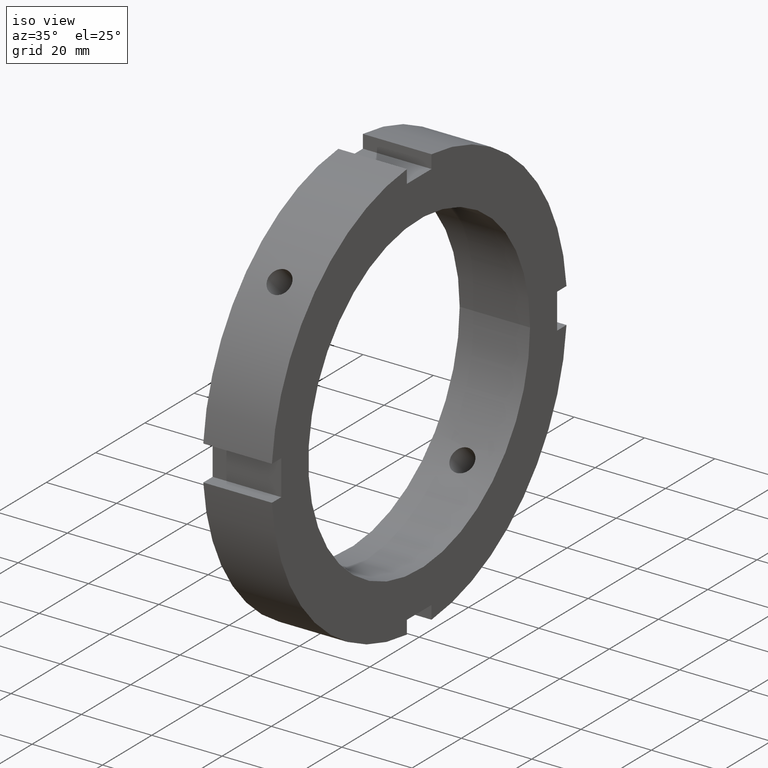
[diagram: clean part render]
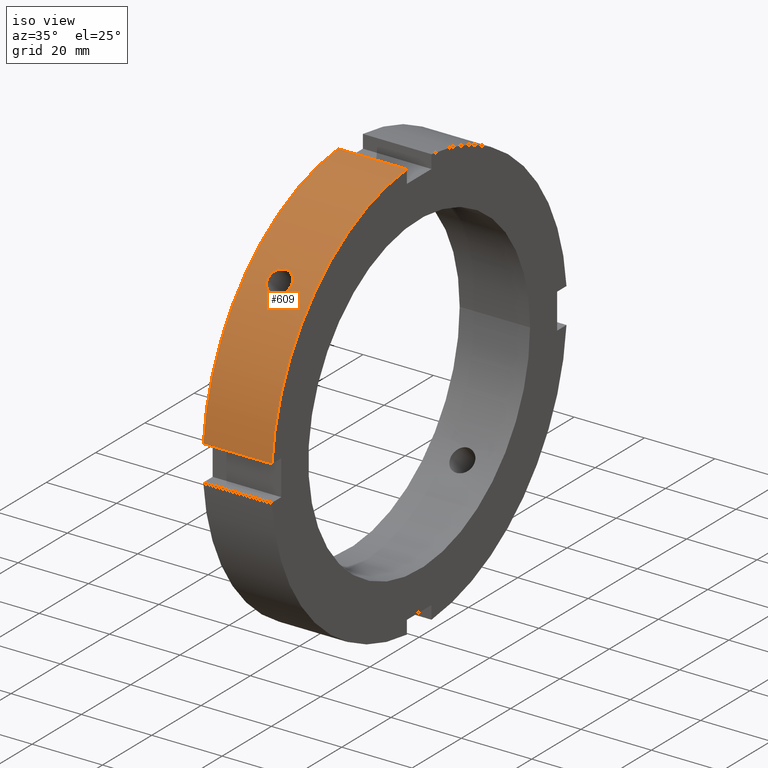
[diagram: same view with one face highlighted and labeled with its STEP entity id]
A machine part, iso view. The second image highlights one B-rep face of the part: STEP entity #609.
In plain terms, the highlighted cylindrical surface (partial cylindrical patch) has radius 60 mm, axis along (1, 0, 0).
Its self-contained STEP definition (entity closure, byte-faithful):
#73=CARTESIAN_POINT('',(9.999999999999991,-44.711339125974661,40.011200351427682));
#74=VERTEX_POINT('',#73);
#75=CARTESIAN_POINT('',(9.999999999999989,-44.711339125974654,40.011200351427703));
#76=CARTESIAN_POINT('',(9.582602221231237,-44.711339125974654,40.011200351427703));
#77=CARTESIAN_POINT('',(9.137441260602060,-44.655743958096878,40.073599433775541));
#78=CARTESIAN_POINT('',(8.318624826173176,-44.428182373753664,40.325741790524454));
#79=CARTESIAN_POINT('',(7.944962107137318,-44.256042167446601,40.515304626723662));
#80=CARTESIAN_POINT('',(7.354899212241063,-43.855159526672516,40.948896934564978));
#81=CARTESIAN_POINT('',(7.099136467179797,-43.599645534778404,41.221821887794626));
#82=CARTESIAN_POINT('',(6.759934497809716,-43.032931829314769,41.813089681101580));
#83=CARTESIAN_POINT('',(6.676499999999991,-42.721551577050967,42.131262165334732));
#84=CARTESIAN_POINT('',(6.676499999999991,-42.131262165334689,42.721551577051009));
#85=CARTESIAN_POINT('',(6.759934497809716,-41.813089681101530,43.032931829314805));
#86=CARTESIAN_POINT('',(7.099136467179788,-41.221821887794604,43.599645534778439));
#87=CARTESIAN_POINT('',(7.354899212241064,-40.948896934564956,43.855159526672537));
#88=CARTESIAN_POINT('',(7.944962107137310,-40.515304626723641,44.256042167446623));
#89=CARTESIAN_POINT('',(8.318624826173158,-40.325741790524418,44.428182373753685));
#90=CARTESIAN_POINT('',(9.137441260602046,-40.073599433775506,44.655743958096906));
#91=CARTESIAN_POINT('',(9.582602221231236,-40.011200351427675,44.711339125974675));
#92=CARTESIAN_POINT('',(10.417397778768747,-40.011200351427675,44.711339125974675));
#93=CARTESIAN_POINT('',(10.862558739397937,-40.073599433775506,44.655743958096906));
#94=CARTESIAN_POINT('',(11.681375173826824,-40.325741790524418,44.428182373753685));
#95=CARTESIAN_POINT('',(12.055037892862670,-40.515304626723641,44.256042167446623));
#96=CARTESIAN_POINT('',(12.645100787758917,-40.948896934564956,43.855159526672537));
#97=CARTESIAN_POINT('',(12.900863532820193,-41.221821887794604,43.599645534778439));
#98=CARTESIAN_POINT('',(13.240065502190264,-41.813089681101530,43.032931829314805));
#99=CARTESIAN_POINT('',(13.323499999999990,-42.131262165334689,42.721551577051009));
#100=CARTESIAN_POINT('',(13.323499999999990,-42.721551577050967,42.131262165334732));
#101=CARTESIAN_POINT('',(13.240065502190264,-43.032931829314769,41.813089681101580));
#102=CARTESIAN_POINT('',(12.900863532820185,-43.599645534778404,41.221821887794626));
#103=CARTESIAN_POINT('',(12.645100787758921,-43.855159526672516,40.948896934564978));
#104=CARTESIAN_POINT('',(12.055037892862668,-44.256042167446601,40.515304626723662));
#105=CARTESIAN_POINT('',(11.681375173826808,-44.428182373753657,40.325741790524454));
#106=CARTESIAN_POINT('',(10.862558739397922,-44.655743958096863,40.073599433775541));
#107=CARTESIAN_POINT('',(10.417397778768741,-44.711339125974654,40.011200351427703));
#108=CARTESIAN_POINT('',(9.999999999999989,-44.711339125974654,40.011200351427703));
#109=B_SPLINE_CURVE_WITH_KNOTS('',3,(#75,#76,#77,#78,#79,#80,#81,#82,#83,#84,#85,#86,#87,#88,#89,#90,#91,#92,#93,#94,#95,#96,#97,#98,#99,#100,#101,#102,#103,#104,#105,#106,#107,#108),.UNSPECIFIED.,.T.,.U.,(4,2,2,2,2,2,2,2,2,2,2,2,2,2,2,2,4),(0.0,0.125219333630626,0.250438667261252,0.375657961027413,0.500877254793573,0.626096548559732,0.751315842325891,0.876535175956518,1.001754509587145,1.126973843217771,1.252193176848398,1.377412470614556,1.502631764380715,1.627851058146876,1.753070351913037,1.878289685543663,2.003509019174289),.UNSPECIFIED.);
#110=EDGE_CURVE('',#74,#74,#109,.T.);
#353=CARTESIAN_POINT('',(0.499999999999984,-59.791303715506992,5.000000000000004));
#354=VERTEX_POINT('',#353);
#369=CARTESIAN_POINT('',(19.999999999999989,-59.791303715506992,5.000000000000004));
#370=VERTEX_POINT('',#369);
#377=CARTESIAN_POINT('',(0.499999999999984,-59.791303715506992,5.000000000000004));
#378=DIRECTION('',(1.0,0.0,0.0));
#379=VECTOR('',#378,19.500000000000007);
#380=LINE('',#377,#379);
#381=EDGE_CURVE('',#354,#370,#380,.T.);
#493=CARTESIAN_POINT('',(0.499999999999984,-4.999999999999992,59.791303715506992));
#494=VERTEX_POINT('',#493);
#503=CARTESIAN_POINT('',(19.999999999999989,-4.999999999999992,59.791303715506992));
#504=VERTEX_POINT('',#503);
#505=CARTESIAN_POINT('',(19.999999999999989,-4.999999999999992,59.791303715506992));
#506=DIRECTION('',(-1.0,0.0,0.0));
#507=VECTOR('',#506,19.500000000000007);
#508=LINE('',#505,#507);
#509=EDGE_CURVE('',#504,#494,#508,.T.);
#583=CARTESIAN_POINT('',(10.249999999999986,0.0,0.0));
#584=DIRECTION('',(1.0,0.0,0.0));
#585=DIRECTION('',(0.0,1.0,0.0));
#586=AXIS2_PLACEMENT_3D('',#583,#584,#585);
#587=CYLINDRICAL_SURFACE('',#586,60.0);
#588=ORIENTED_EDGE('',*,*,#381,.T.);
#589=CARTESIAN_POINT('',(19.999999999999986,0.0,0.0));
#590=DIRECTION('',(1.0,0.0,0.0));
#591=DIRECTION('',(0.0,1.0,0.0));
#592=AXIS2_PLACEMENT_3D('',#589,#590,#591);
#593=CIRCLE('',#592,60.0);
#594=EDGE_CURVE('',#504,#370,#593,.T.);
#595=ORIENTED_EDGE('',*,*,#594,.F.);
#596=ORIENTED_EDGE('',*,*,#509,.T.);
#597=CARTESIAN_POINT('',(0.499999999999985,0.0,0.0));
#598=DIRECTION('',(1.0,0.0,0.0));
#599=DIRECTION('',(0.0,1.0,0.0));
#600=AXIS2_PLACEMENT_3D('',#597,#598,#599);
#601=CIRCLE('',#600,60.0);
#602=EDGE_CURVE('',#494,#354,#601,.T.);
#603=ORIENTED_EDGE('',*,*,#602,.T.);
#604=EDGE_LOOP('',(#588,#595,#596,#603));
#605=FACE_OUTER_BOUND('',#604,.T.);
#606=ORIENTED_EDGE('',*,*,#110,.T.);
#607=EDGE_LOOP('',(#606));
#608=FACE_BOUND('',#607,.T.);
#609=ADVANCED_FACE('',(#605,#608),#587,.T.);